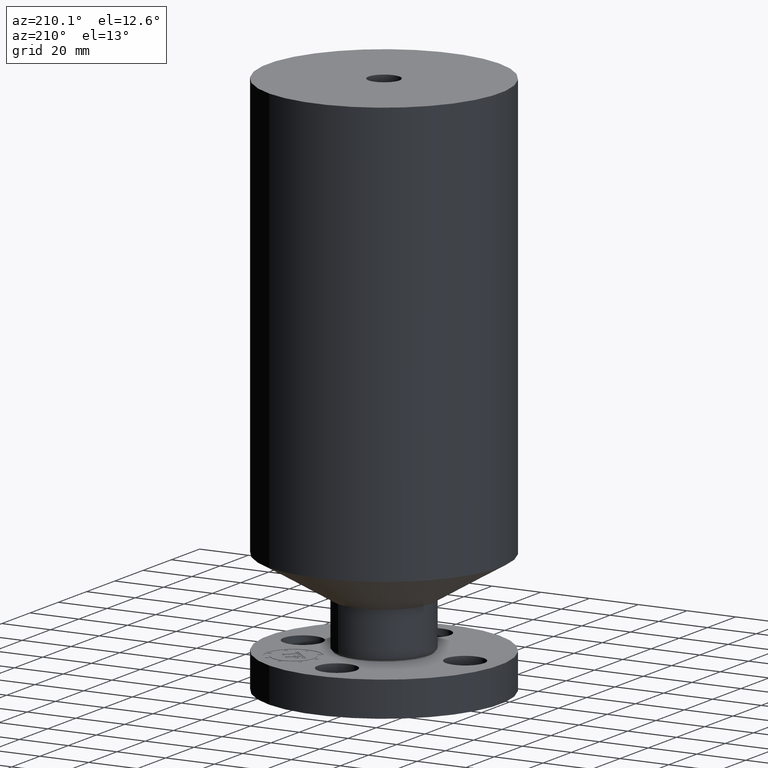
[diagram: clean part render]
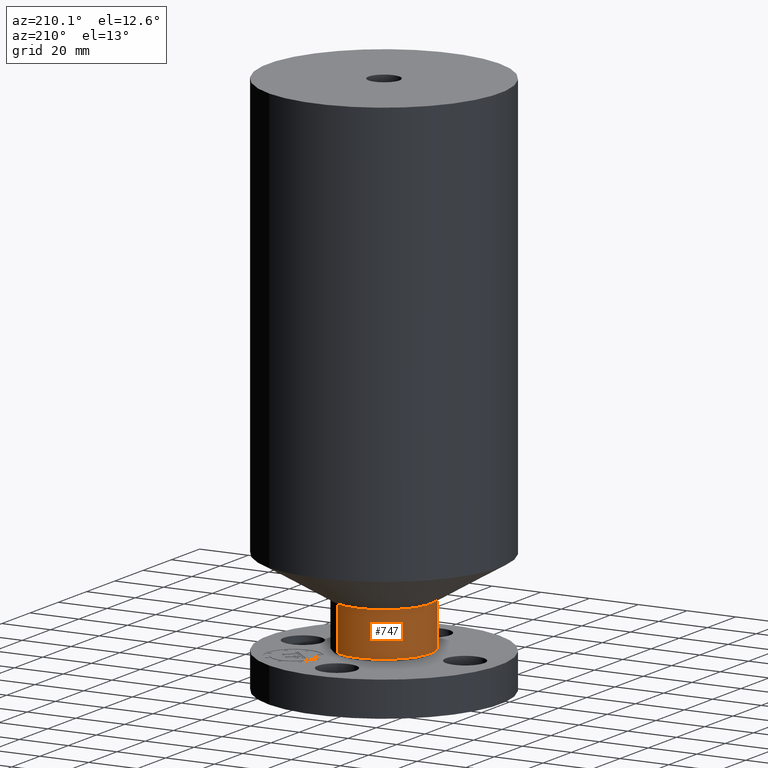
[diagram: same view with one face highlighted and labeled with its STEP entity id]
A machine part, auxiliary view. The second image highlights one B-rep face of the part: STEP entity #747.
In plain terms, the highlighted cylindrical surface (partial cylindrical patch) has radius 19.05 mm, axis along (0, 0, -1).
Its self-contained STEP definition (entity closure, byte-faithful):
#516=AXIS2_PLACEMENT_3D('Circle Axis2P3D',#514,#515,$) ;
#708=AXIS2_PLACEMENT_3D('Cylinder Axis2P3D',#705,#706,#707) ;
#738=AXIS2_PLACEMENT_3D('Circle Axis2P3D',#736,#737,$) ;
#492=CARTESIAN_POINT('Vertex',(0.359569153955,0.65818692142,0.600980762116)) ;
#499=CARTESIAN_POINT('Vertex',(-0.359569153955,-0.65818692142,0.600980762116)) ;
#514=CARTESIAN_POINT('Axis2P3D Location',(0.,0.,0.600980762116)) ;
#705=CARTESIAN_POINT('Axis2P3D Location',(0.,0.,4.25000000002)) ;
#710=CARTESIAN_POINT('Line Origine',(0.359569153955,0.65818692142,0.955490381061)) ;
#714=CARTESIAN_POINT('Vertex',(0.359569153955,0.65818692142,1.31000000001)) ;
#721=CARTESIAN_POINT('Vertex',(-0.359569153955,-0.65818692142,1.31000000001)) ;
#724=CARTESIAN_POINT('Line Origine',(-0.359569153955,-0.65818692142,0.955490381061)) ;
#736=CARTESIAN_POINT('Axis2P3D Location',(0.,0.,1.31000000001)) ;
#515=DIRECTION('Axis2P3D Direction',(-0.,0.,0.0393700787402)) ;
#706=DIRECTION('Axis2P3D Direction',(0.,0.,-0.0393700787402)) ;
#707=DIRECTION('Axis2P3D XDirection',(-0.0188750212049,-0.0345504945626,0.)) ;
#711=DIRECTION('Vector Direction',(0.,0.,-0.0393700787402)) ;
#725=DIRECTION('Vector Direction',(0.,0.,-0.0393700787402)) ;
#737=DIRECTION('Axis2P3D Direction',(0.,0.,-0.0393700787402)) ;
#712=VECTOR('Line Direction',#711,0.0393700787402) ;
#726=VECTOR('Line Direction',#725,0.0393700787402) ;
#742=ORIENTED_EDGE('',*,*,#518,.F.) ;
#743=ORIENTED_EDGE('',*,*,#728,.T.) ;
#744=ORIENTED_EDGE('',*,*,#740,.T.) ;
#745=ORIENTED_EDGE('',*,*,#716,.F.) ;
#747=ADVANCED_FACE('PartBody',(#746),#709,.T.) ;
#517=CIRCLE('generated circle',#516,0.750000000003) ;
#739=CIRCLE('generated circle',#738,0.750000000003) ;
#709=CYLINDRICAL_SURFACE('generated cylinder',#708,0.750000000003) ;
#518=EDGE_CURVE('',#500,#493,#517,.F.) ;
#716=EDGE_CURVE('',#493,#715,#713,.F.) ;
#728=EDGE_CURVE('',#500,#722,#727,.F.) ;
#740=EDGE_CURVE('',#722,#715,#739,.T.) ;
#741=EDGE_LOOP('',(#742,#743,#744,#745)) ;
#746=FACE_OUTER_BOUND('',#741,.T.) ;
#713=LINE('Line',#710,#712) ;
#727=LINE('Line',#724,#726) ;
#493=VERTEX_POINT('',#492) ;
#500=VERTEX_POINT('',#499) ;
#715=VERTEX_POINT('',#714) ;
#722=VERTEX_POINT('',#721) ;